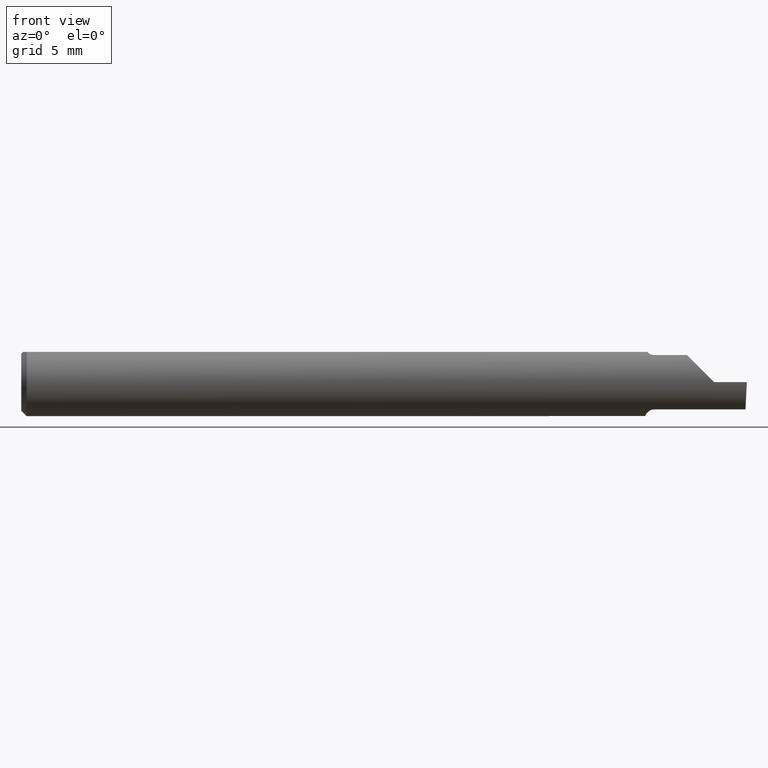
[diagram: clean part render]
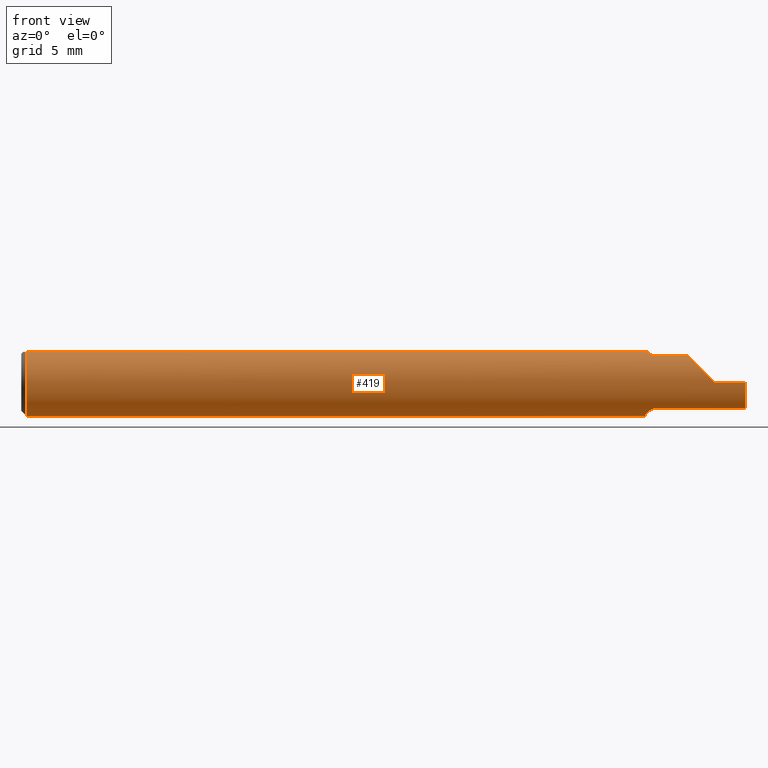
[diagram: same view with one face highlighted and labeled with its STEP entity id]
A machine part, front view. The second image highlights one B-rep face of the part: STEP entity #419.
In plain terms, the highlighted cylindrical surface (edge-blend (fillet) strip) has radius 2.3774 mm, axis along (-1, -0, -0).
Its self-contained STEP definition (entity closure, byte-faithful):
#6 = ORIENTED_EDGE ( 'NONE', *, *, #258, .F. ) ;
#8 = CARTESIAN_POINT ( 'NONE',  ( 1.995486889784650053, -0.05810704225352111146, -0.07337936794867826185 ) ) ;
#14 = CYLINDRICAL_SURFACE ( 'NONE', #696, 0.09359999999999998876 ) ;
#18 = LINE ( 'NONE', #444, #465 ) ;
#19 = VECTOR ( 'NONE', #457, 39.37007874015748143 ) ;
#22 = CARTESIAN_POINT ( 'NONE',  ( 1.730259025420519237, -0.04992838138009422083, 0.07925011723318650669 ) ) ;
#31 = CIRCLE ( 'NONE', #775, 0.09359999999999998876 ) ;
#33 = CARTESIAN_POINT ( 'NONE',  ( 0.01499999999999999944, -0.04209513035969836975, 0.08359999999999999376 ) ) ;
#36 = CARTESIAN_POINT ( 'NONE',  ( 1.722415450430337946, -0.03151229630690470518, -0.08835846806355296401 ) ) ;
#38 = EDGE_CURVE ( 'NONE', #464, #596, #106, .T. ) ;
#39 = EDGE_CURVE ( 'NONE', #120, #640, #647, .T. ) ;
#47 = CARTESIAN_POINT ( 'NONE',  ( 1.836620632051322310, -0.05810704225352111840, 0.07337936794867826185 ) ) ;
#51 = ORIENTED_EDGE ( 'NONE', *, *, #353, .F. ) ;
#54 = DIRECTION ( 'NONE',  ( -1.000000000000000000, -0.000000000000000000, -0.000000000000000000 ) ) ;
#55 = ORIENTED_EDGE ( 'NONE', *, *, #38, .F. ) ;
#56 = CARTESIAN_POINT ( 'NONE',  ( 0.01499999999999999598, 0.04209513035969836975, 0.08359999999999999376 ) ) ;
#58 = ORIENTED_EDGE ( 'NONE', *, *, #39, .T. ) ;
#64 = LINE ( 'NONE', #71, #223 ) ;
#71 = CARTESIAN_POINT ( 'NONE',  ( 0.000000000000000000, -0.04209513035969836975, 0.08359999999999999376 ) ) ;
#75 = LINE ( 'NONE', #734, #426 ) ;
#76 = VERTEX_POINT ( 'NONE', #633 ) ;
#78 = DIRECTION ( 'NONE',  ( 0.000000000000000000, 0.000000000000000000, 1.000000000000000000 ) ) ;
#84 = CIRCLE ( 'NONE', #528, 0.09359999999999998876 ) ;
#87 = CARTESIAN_POINT ( 'NONE',  ( 1.719999999999999751, 0.000000000000000000, 0.000000000000000000 ) ) ;
#92 = VECTOR ( 'NONE', #237, 39.37007874015748143 ) ;
#106 = LINE ( 'NONE', #348, #156 ) ;
#108 = VERTEX_POINT ( 'NONE', #162 ) ;
#115 = CARTESIAN_POINT ( 'NONE',  ( 1.910000000000000142, -0.09359999999999998876, 1.102182119232621301E-17 ) ) ;
#120 = VERTEX_POINT ( 'NONE', #274 ) ;
#134 = CARTESIAN_POINT ( 'NONE',  ( 1.726356684838558531, -0.04259999999999997122, -0.08334386600104412568 ) ) ;
#137 = FACE_OUTER_BOUND ( 'NONE', #760, .T. ) ;
#141 = CARTESIAN_POINT ( 'NONE',  ( 0.01499999999999999944, 0.000000000000000000, 0.000000000000000000 ) ) ;
#142 = ORIENTED_EDGE ( 'NONE', *, *, #437, .F. ) ;
#156 = VECTOR ( 'NONE', #463, 39.37007874015748143 ) ;
#162 = CARTESIAN_POINT ( 'NONE',  ( 1.744999999999999885, -0.05810704225352107677, -0.07337936794867828960 ) ) ;
#164 = CARTESIAN_POINT ( 'NONE',  ( 1.728086474849918508, -0.04638796853538176834, -0.08140770120152256151 ) ) ;
#174 = ORIENTED_EDGE ( 'NONE', *, *, #178, .T. ) ;
#178 = EDGE_CURVE ( 'NONE', #640, #596, #742, .T. ) ;
#180 = VERTEX_POINT ( 'NONE', #240 ) ;
#190 = ORIENTED_EDGE ( 'NONE', *, *, #428, .T. ) ;
#194 = CARTESIAN_POINT ( 'NONE',  ( 1.995561922431087876, -0.08091355869144019330, -0.05531953381055035313 ) ) ;
#214 = CARTESIAN_POINT ( 'NONE',  ( 1.719999999999999751, -0.006757276995305157297, -0.09335576686851604356 ) ) ;
#223 = VECTOR ( 'NONE', #309, 39.37007874015748143 ) ;
#231 = CARTESIAN_POINT ( 'NONE',  ( 1.736446782524424082, -0.05558685324519236498, -0.07531605361338915283 ) ) ;
#234 = EDGE_CURVE ( 'NONE', #356, #605, #725, .T. ) ;
#237 = DIRECTION ( 'NONE',  ( -1.000000000000000000, -0.000000000000000000, -0.000000000000000000 ) ) ;
#240 = CARTESIAN_POINT ( 'NONE',  ( 1.995486889784650053, -0.05810704225352111146, -0.07337936794867826185 ) ) ;
#248 = CARTESIAN_POINT ( 'NONE',  ( 1.996026586675631709, -0.09358669535931166128, -0.02913391928411207185 ) ) ;
#252 = CARTESIAN_POINT ( 'NONE',  ( 1.734746577633804243, -0.05429945193459817521, 0.07626038032150797563 ) ) ;
#258 = EDGE_CURVE ( 'NONE', #422, #546, #31, .T. ) ;
#260 = CARTESIAN_POINT ( 'NONE',  ( 1.744999999999999885, -0.05810704225352114616, 0.07337936794867826185 ) ) ;
#274 = CARTESIAN_POINT ( 'NONE',  ( 1.996789369178486373, -0.09359999999634724399, 1.965990811775635199E-19 ) ) ;
#277 = DIRECTION ( 'NONE',  ( 0.000000000000000000, 0.000000000000000000, -1.000000000000000000 ) ) ;
#286 = EDGE_CURVE ( 'NONE', #630, #76, #554, .T. ) ;
#287 = CARTESIAN_POINT ( 'NONE',  ( 1.726356684838558531, -0.04259999999999997816, 0.08334386600104415344 ) ) ;
#303 = CARTESIAN_POINT ( 'NONE',  ( 0.000000000000000000, 0.04209513035969836975, 0.08359999999999999376 ) ) ;
#309 = DIRECTION ( 'NONE',  ( 1.000000000000000000, 0.000000000000000000, 0.000000000000000000 ) ) ;
#311 = B_SPLINE_CURVE_WITH_KNOTS ( 'NONE', 3,
 ( #357, #713, #606, #231, #470, #589, #164, #769 ),
 .UNSPECIFIED., .F., .F.,
 ( 4, 2, 2, 4 ),
 ( 1.968126669309311202E-07, 0.0001761966947278539039, 0.0003521965767887768836, 0.0007041963409106363411 ),
 .UNSPECIFIED. ) ;
#314 = ORIENTED_EDGE ( 'NONE', *, *, #398, .F. ) ;
#316 = CARTESIAN_POINT ( 'NONE',  ( 1.736469028275930526, -0.05559939362423894915, 0.07530665289274067475 ) ) ;
#318 = VERTEX_POINT ( 'NONE', #562 ) ;
#319 = EDGE_CURVE ( 'NONE', #605, #422, #331, .T. ) ;
#321 = CARTESIAN_POINT ( 'NONE',  ( 1.996788249052547259, -0.09359999022555408332, -4.277588313355801215E-05 ) ) ;
#331 = CIRCLE ( 'NONE', #651, 0.09359999999999998876 ) ;
#333 = ORIENTED_EDGE ( 'NONE', *, *, #234, .F. ) ;
#348 = CARTESIAN_POINT ( 'NONE',  ( 1.857250000000000068, -0.05810704225352111146, 0.07337936794867826185 ) ) ;
#353 = EDGE_CURVE ( 'NONE', #180, #108, #18, .T. ) ;
#356 = VERTEX_POINT ( 'NONE', #744 ) ;
#357 = CARTESIAN_POINT ( 'NONE',  ( 1.744999999999999885, -0.05810704225352107677, -0.07337936794867828960 ) ) ;
#361 = CARTESIAN_POINT ( 'NONE',  ( 1.836620632051322310, -0.05810704225352111840, 0.07337936794867826185 ) ) ;
#366 = ORIENTED_EDGE ( 'NONE', *, *, #486, .F. ) ;
#379 = DIRECTION ( 'NONE',  ( -1.000000000000000000, -0.000000000000000000, -0.000000000000000000 ) ) ;
#396 = VERTEX_POINT ( 'NONE', #134 ) ;
#398 = EDGE_CURVE ( 'NONE', #546, #630, #64, .T. ) ;
#419 = ADVANCED_FACE ( 'NONE', ( #137 ), #14, .T. ) ;
#420 = CARTESIAN_POINT ( 'NONE',  ( 1.996788249052547259, -0.09359999022555408332, -4.277588313355801215E-05 ) ) ;
#422 = VERTEX_POINT ( 'NONE', #684 ) ;
#426 = VECTOR ( 'NONE', #548, 39.37007874015748854 ) ;
#428 = EDGE_CURVE ( 'NONE', #625, #120, #75, .T. ) ;
#430 = DIRECTION ( 'NONE',  ( -1.000000000000000000, -0.000000000000000000, -0.000000000000000000 ) ) ;
#434 = EDGE_CURVE ( 'NONE', #180, #625, #690, .T. ) ;
#437 = EDGE_CURVE ( 'NONE', #76, #464, #471, .T. ) ;
#438 = CARTESIAN_POINT ( 'NONE',  ( 1.728098441794898354, -0.04641417426599063478, 0.08139430652501544738 ) ) ;
#441 = DIRECTION ( 'NONE',  ( 0.000000000000000000, 0.000000000000000000, 1.000000000000000000 ) ) ;
#444 = CARTESIAN_POINT ( 'NONE',  ( 1.857250000000000068, -0.05810704225352111146, -0.07337936794867826185 ) ) ;
#457 = DIRECTION ( 'NONE',  ( -1.000000000000000000, -0.000000000000000000, -0.000000000000000000 ) ) ;
#463 = DIRECTION ( 'NONE',  ( 1.000000000000000000, 0.000000000000000000, 0.000000000000000000 ) ) ;
#464 = VERTEX_POINT ( 'NONE', #764 ) ;
#465 = VECTOR ( 'NONE', #676, 39.37007874015748143 ) ;
#470 = CARTESIAN_POINT ( 'NONE',  ( 1.734728336617688882, -0.05428341532129050961, -0.07627162539867091140 ) ) ;
#471 = B_SPLINE_CURVE_WITH_KNOTS ( 'NONE', 3,
 ( #490, #438, #22, #252, #316, #500, #556, #260 ),
 .UNSPECIFIED., .F., .F.,
 ( 4, 2, 2, 4 ),
 ( 1.584523690453573094E-05, 0.0003656721978374746925, 0.0005405856783039505531, 0.0007154991587704265764 ),
 .UNSPECIFIED. ) ;
#472 = CARTESIAN_POINT ( 'NONE',  ( 1.854690286057537829, -0.08092595952420826577, 0.05530971394246238237 ) ) ;
#479 = CARTESIAN_POINT ( 'NONE',  ( 1.726280153739604639, -0.04243240890922537339, 0.08342952773968856373 ) ) ;
#486 = EDGE_CURVE ( 'NONE', #318, #356, #84, .T. ) ;
#487 = ORIENTED_EDGE ( 'NONE', *, *, #319, .F. ) ;
#490 = CARTESIAN_POINT ( 'NONE',  ( 1.726356684838558531, -0.04259999999999997816, 0.08334386600104415344 ) ) ;
#500 = CARTESIAN_POINT ( 'NONE',  ( 1.740389214148234220, -0.05750155061631040398, 0.07386444488392698848 ) ) ;
#504 = CARTESIAN_POINT ( 'NONE',  ( 0.000000000000000000, 0.000000000000000000, 0.000000000000000000 ) ) ;
#516 = CARTESIAN_POINT ( 'NONE',  ( 1.720436655799338910, -0.01945041057485635827, -0.09177104786119411051 ) ) ;
#528 = AXIS2_PLACEMENT_3D ( 'NONE', #87, #585, #277 ) ;
#529 = CARTESIAN_POINT ( 'NONE',  ( 1.726129652885479260, -0.04209513035970094408, 0.08359999999999999376 ) ) ;
#534 = DIRECTION ( 'NONE',  ( 0.000000000000000000, 0.000000000000000000, 1.000000000000000000 ) ) ;
#545 = CARTESIAN_POINT ( 'NONE',  ( 1.726129652885479260, -0.04209513035970094408, 0.08359999999999999376 ) ) ;
#546 = VERTEX_POINT ( 'NONE', #33 ) ;
#548 = DIRECTION ( 'NONE',  ( 0.02617296143184117893, -0.0004568507411563393905, 0.9996573249755575929 ) ) ;
#554 = B_SPLINE_CURVE_WITH_KNOTS ( 'NONE', 3,
 ( #545, #661, #479, #287 ),
 .UNSPECIFIED., .F., .F.,
 ( 4, 4 ),
 ( 4.741820243502701581E-07, 1.584523690453573094E-05 ),
 .UNSPECIFIED. ) ;
#556 = CARTESIAN_POINT ( 'NONE',  ( 1.742655343791670086, -0.05810704225352127106, 0.07337936794867813695 ) ) ;
#557 = ORIENTED_EDGE ( 'NONE', *, *, #434, .T. ) ;
#562 = CARTESIAN_POINT ( 'NONE',  ( 1.719999999999999751, -0.006757276995305157297, -0.09335576686851604356 ) ) ;
#572 = EDGE_CURVE ( 'NONE', #396, #318, #754, .T. ) ;
#575 = ORIENTED_EDGE ( 'NONE', *, *, #602, .F. ) ;
#576 = CARTESIAN_POINT ( 'NONE',  ( 1.726356684838558531, -0.04259999999999997122, -0.08334386600104412568 ) ) ;
#585 = DIRECTION ( 'NONE',  ( 1.000000000000000000, 0.000000000000000000, 0.000000000000000000 ) ) ;
#589 = CARTESIAN_POINT ( 'NONE',  ( 1.730264545693808831, -0.04993027844100268037, -0.07924826417278514612 ) ) ;
#595 = CARTESIAN_POINT ( 'NONE',  ( 1.880893035518783396, -0.09359999999999998876, 0.02910696448121675300 ) ) ;
#596 = VERTEX_POINT ( 'NONE', #361 ) ;
#597 = CARTESIAN_POINT ( 'NONE',  ( 1.910000000000000142, -0.09359999999999998876, 1.102182119232621301E-17 ) ) ;
#599 = CARTESIAN_POINT ( 'NONE',  ( 0.01499999999999999944, 0.000000000000000000, 0.000000000000000000 ) ) ;
#602 = EDGE_CURVE ( 'NONE', #108, #396, #311, .T. ) ;
#605 = VERTEX_POINT ( 'NONE', #56 ) ;
#606 = CARTESIAN_POINT ( 'NONE',  ( 1.740389671955115958, -0.05750350940205799927, -0.07386306649500064270 ) ) ;
#623 = ORIENTED_EDGE ( 'NONE', *, *, #572, .F. ) ;
#625 = VERTEX_POINT ( 'NONE', #420 ) ;
#630 = VERTEX_POINT ( 'NONE', #529 ) ;
#633 = CARTESIAN_POINT ( 'NONE',  ( 1.726356684838558531, -0.04259999999999997816, 0.08334386600104415344 ) ) ;
#640 = VERTEX_POINT ( 'NONE', #597 ) ;
#642 = CARTESIAN_POINT ( 'NONE',  ( 1.723953896433695787, -0.03733827064844358334, -0.08603332211978831356 ) ) ;
#647 = LINE ( 'NONE', #759, #19 ) ;
#651 = AXIS2_PLACEMENT_3D ( 'NONE', #141, #430, #78 ) ;
#661 = CARTESIAN_POINT ( 'NONE',  ( 1.726204482410374164, -0.04226411763296330365, 0.08351490979309549034 ) ) ;
#676 = DIRECTION ( 'NONE',  ( -1.000000000000000000, -0.000000000000000000, -0.000000000000000000 ) ) ;
#681 = ORIENTED_EDGE ( 'NONE', *, *, #286, .F. ) ;
#684 = CARTESIAN_POINT ( 'NONE',  ( 0.01499999999999999944, 0.000000000000000000, -0.09359999999999998876 ) ) ;
#690 =( BOUNDED_CURVE ( )  B_SPLINE_CURVE ( 3, ( #8, #194, #248, #321 ),
 .UNSPECIFIED., .F., .T. ) 
 B_SPLINE_CURVE_WITH_KNOTS ( ( 4, 4 ),
 ( 0.08204942185700569990, 0.9826237902196914842 ),
 .UNSPECIFIED. ) 
 CURVE ( )  GEOMETRIC_REPRESENTATION_ITEM ( )  RATIONAL_B_SPLINE_CURVE ( ( 1.000000000000000000, 0.9335481000009943076, 0.9335481000009943076, 1.000000000000000000 ) ) 
 REPRESENTATION_ITEM ( '' )  );
#696 = AXIS2_PLACEMENT_3D ( 'NONE', #504, #379, #441 ) ;
#713 = CARTESIAN_POINT ( 'NONE',  ( 1.742653034764491959, -0.05810704225352129881, -0.07337936794867812307 ) ) ;
#725 = LINE ( 'NONE', #303, #92 ) ;
#734 = CARTESIAN_POINT ( 'NONE',  ( 1.994172072281005237, -0.09355431490906530867, -0.09996576130738771271 ) ) ;
#742 =( BOUNDED_CURVE ( )  B_SPLINE_CURVE ( 3, ( #115, #595, #472, #47 ),
 .UNSPECIFIED., .F., .T. ) 
 B_SPLINE_CURVE_WITH_KNOTS ( ( 4, 4 ),
 ( 4.712388980384689674, 5.613420356061718408 ),
 .UNSPECIFIED. ) 
 CURVE ( )  GEOMETRIC_REPRESENTATION_ITEM ( )  RATIONAL_B_SPLINE_CURVE ( ( 1.000000000000000000, 0.9334817841311876530, 0.9334817841311876530, 1.000000000000000000 ) ) 
 REPRESENTATION_ITEM ( '' )  );
#744 = CARTESIAN_POINT ( 'NONE',  ( 1.719999999999999751, 0.04209513035969834893, 0.08359999999999999376 ) ) ;
#754 = B_SPLINE_CURVE_WITH_KNOTS ( 'NONE', 3,
 ( #576, #642, #36, #516, #758, #214 ),
 .UNSPECIFIED., .F., .F.,
 ( 4, 2, 4 ),
 ( 0.0007041963409106363411, 0.001193146413573859584, 0.001682096486237082827 ),
 .UNSPECIFIED. ) ;
#758 = CARTESIAN_POINT ( 'NONE',  ( 1.719999999999999751, -0.01308640439514264717, -0.09289765197734373148 ) ) ;
#759 = CARTESIAN_POINT ( 'NONE',  ( 2.999519565323743132E-32, -0.09359999999999998876, 2.449293598294717754E-16 ) ) ;
#760 = EDGE_LOOP ( 'NONE', ( #557, #190, #58, #174, #55, #142, #681, #314, #6, #487, #333, #366, #623, #575, #51 ) ) ;
#764 = CARTESIAN_POINT ( 'NONE',  ( 1.744999999999999885, -0.05810704225352114616, 0.07337936794867826185 ) ) ;
#769 = CARTESIAN_POINT ( 'NONE',  ( 1.726356684838558531, -0.04259999999999997122, -0.08334386600104412568 ) ) ;
#775 = AXIS2_PLACEMENT_3D ( 'NONE', #599, #54, #534 ) ;